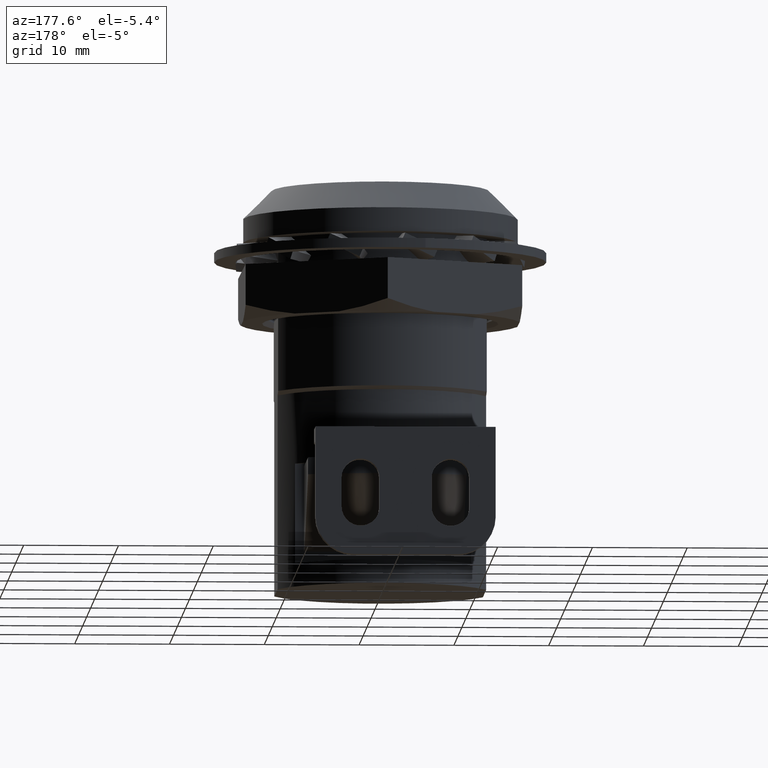
[diagram: clean part render]
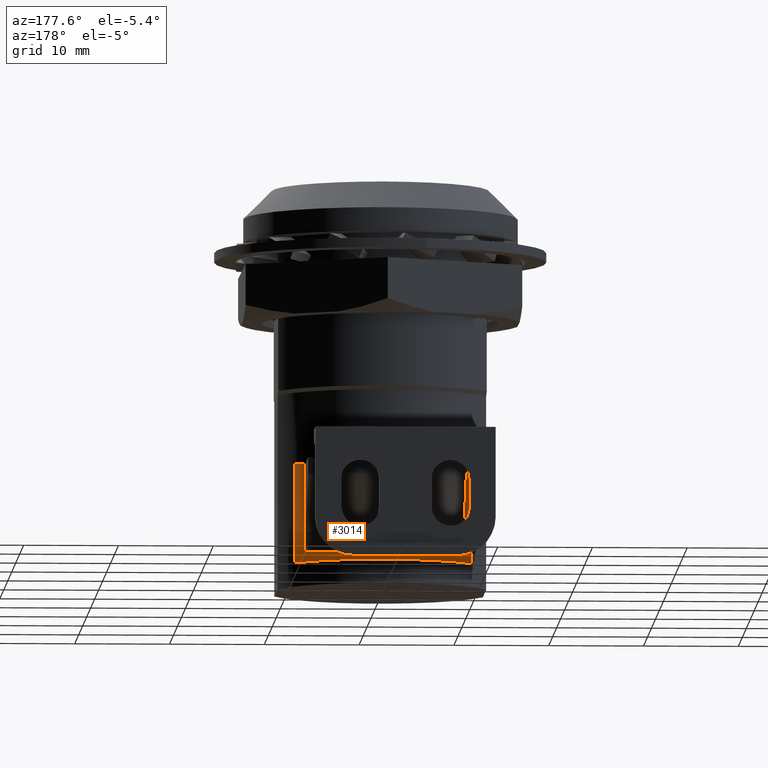
[diagram: same view with one face highlighted and labeled with its STEP entity id]
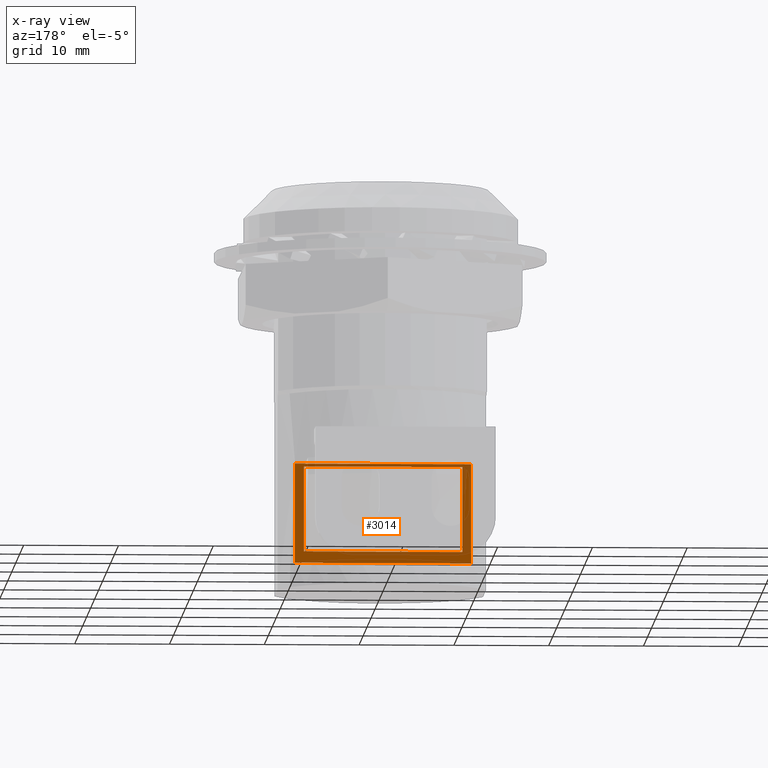
[diagram: x-ray of the same camera — body ghosted, the highlighted face saturated]
A machine part, auxiliary view. The second image highlights one B-rep face of the part: STEP entity #3014.
The next image is the same camera in x-ray: the body ghosted, the highlighted face saturated — about 35% of this face is hidden behind the body in this view.
In plain terms, the highlighted planar face has unit normal (0, -1, -0).
Its self-contained STEP definition (entity closure, byte-faithful):
#168=FACE_BOUND('',#426,.T.);
#256=FACE_OUTER_BOUND('',#425,.T.);
#425=EDGE_LOOP('',(#2049,#2050,#2051,#2052));
#426=EDGE_LOOP('',(#2053,#2054,#2055,#2056));
#686=LINE('',#4091,#974);
#689=LINE('',#4099,#977);
#692=LINE('',#4109,#980);
#695=LINE('',#4122,#983);
#696=LINE('',#4126,#984);
#697=LINE('',#4128,#985);
#698=LINE('',#4130,#986);
#699=LINE('',#4131,#987);
#974=VECTOR('',#3391,16.7);
#977=VECTOR('',#3398,8.99999999999999);
#980=VECTOR('',#3403,8.99999999999999);
#983=VECTOR('',#3416,16.7);
#984=VECTOR('',#3419,10.5);
#985=VECTOR('',#3420,18.571214284478);
#986=VECTOR('',#3421,10.5);
#987=VECTOR('',#3422,18.571214284478);
#1262=VERTEX_POINT('',#4089);
#1263=VERTEX_POINT('',#4090);
#1266=VERTEX_POINT('',#4098);
#1269=VERTEX_POINT('',#4108);
#1272=VERTEX_POINT('',#4124);
#1273=VERTEX_POINT('',#4125);
#1274=VERTEX_POINT('',#4127);
#1275=VERTEX_POINT('',#4129);
#1569=EDGE_CURVE('',#1262,#1263,#686,.T.);
#1573=EDGE_CURVE('',#1266,#1262,#689,.T.);
#1577=EDGE_CURVE('',#1263,#1269,#692,.T.);
#1583=EDGE_CURVE('',#1269,#1266,#695,.T.);
#1584=EDGE_CURVE('',#1272,#1273,#696,.T.);
#1585=EDGE_CURVE('',#1274,#1272,#697,.T.);
#1586=EDGE_CURVE('',#1275,#1274,#698,.T.);
#1587=EDGE_CURVE('',#1275,#1273,#699,.T.);
#2049=ORIENTED_EDGE('',*,*,#1584,.F.);
#2050=ORIENTED_EDGE('',*,*,#1585,.F.);
#2051=ORIENTED_EDGE('',*,*,#1586,.F.);
#2052=ORIENTED_EDGE('',*,*,#1587,.T.);
#2053=ORIENTED_EDGE('',*,*,#1573,.T.);
#2054=ORIENTED_EDGE('',*,*,#1569,.T.);
#2055=ORIENTED_EDGE('',*,*,#1577,.T.);
#2056=ORIENTED_EDGE('',*,*,#1583,.T.);
#2935=PLANE('',#3191);
#3014=ADVANCED_FACE('',(#256,#168),#2935,.F.);
#3191=AXIS2_PLACEMENT_3D('',#4123,#3417,#3418);
#3391=DIRECTION('',(-1.,0.,0.));
#3398=DIRECTION('',(5.99048736293163E-32,-2.11471052309554E-16,1.));
#3403=DIRECTION('',(-5.99048736293163E-32,2.11471052309554E-16,-1.));
#3416=DIRECTION('',(1.,0.,0.));
#3417=DIRECTION('center_axis',(0.,-1.,-2.11471052309554E-16));
#3418=DIRECTION('ref_axis',(0.,0.,1.));
#3419=DIRECTION('',(0.,1.17553026136781E-16,-1.));
#3420=DIRECTION('',(-1.,0.,0.));
#3421=DIRECTION('',(0.,-1.17553026136781E-16,1.));
#3422=DIRECTION('',(-1.,0.,0.));
#4089=CARTESIAN_POINT('',(8.35,7.20000000000001,-29.8));
#4090=CARTESIAN_POINT('',(-8.35,7.20000000000001,-29.8));
#4091=CARTESIAN_POINT('',(-4.225,7.20000000000001,-29.8));
#4098=CARTESIAN_POINT('',(8.35,7.20000000000001,-38.8));
#4099=CARTESIAN_POINT('',(8.35,7.20000000000001,-39.4));
#4108=CARTESIAN_POINT('',(-8.35,7.20000000000001,-38.8));
#4109=CARTESIAN_POINT('',(-8.35,7.20000000000001,-39.4));
#4122=CARTESIAN_POINT('',(5.5,7.20000000000001,-38.8));
#4123=CARTESIAN_POINT('Origin',(11.,7.20000000000001,-40.));
#4124=CARTESIAN_POINT('',(-9.285607142239,7.20000000000001,-29.5));
#4125=CARTESIAN_POINT('',(-9.285607142239,7.20000000000001,-40.));
#4126=CARTESIAN_POINT('',(-9.285607142239,7.20000000000001,-32.25));
#4127=CARTESIAN_POINT('',(9.285607142239,7.20000000000001,-29.5));
#4128=CARTESIAN_POINT('',(11.,7.20000000000001,-29.5));
#4129=CARTESIAN_POINT('',(9.285607142239,7.20000000000001,-40.));
#4130=CARTESIAN_POINT('',(9.285607142239,7.20000000000001,-32.25));
#4131=CARTESIAN_POINT('',(11.,7.20000000000001,-40.));